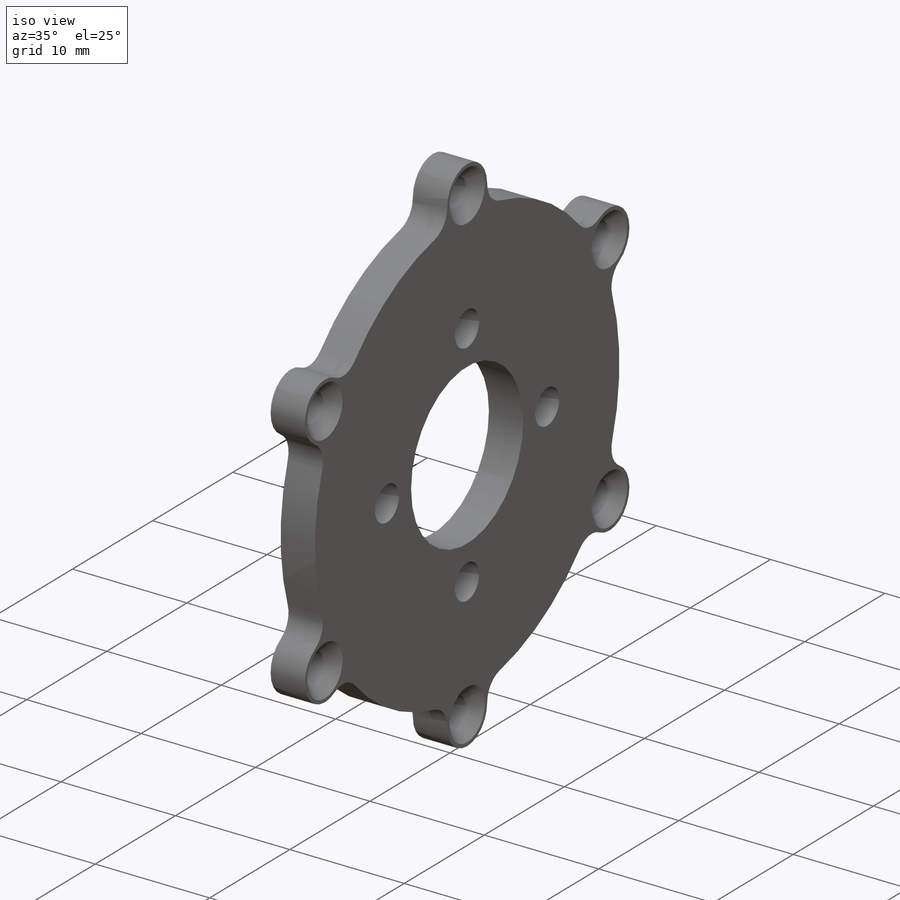
[diagram: iso view]
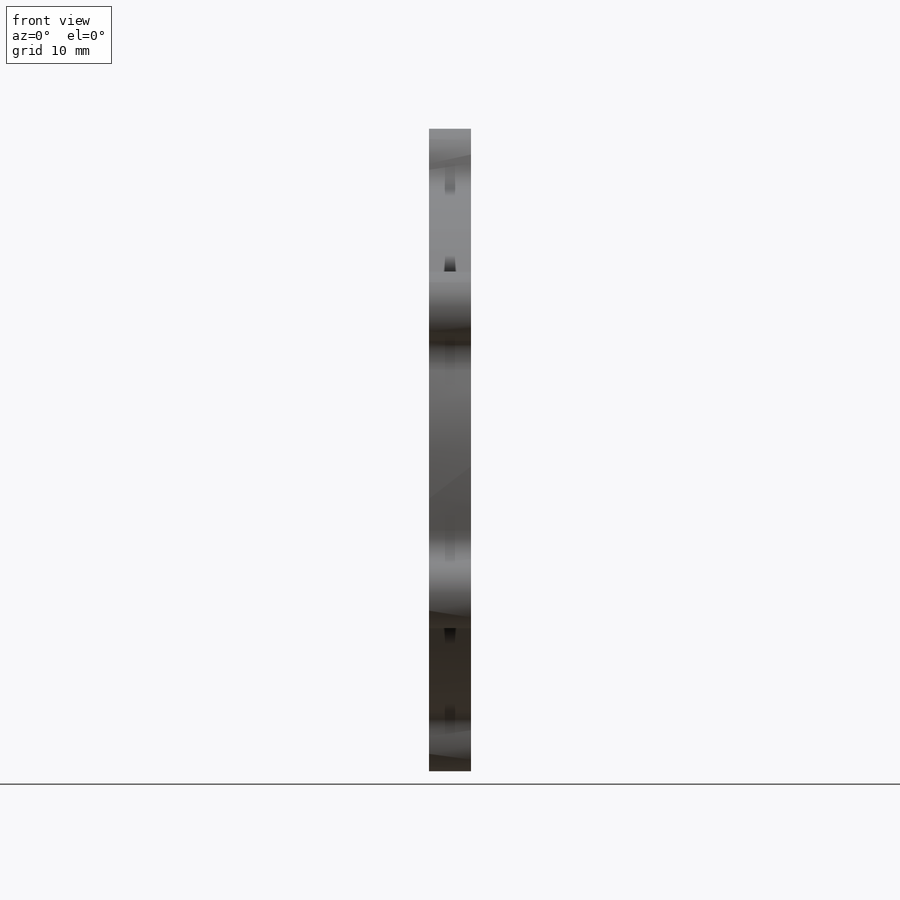
[diagram: front view]
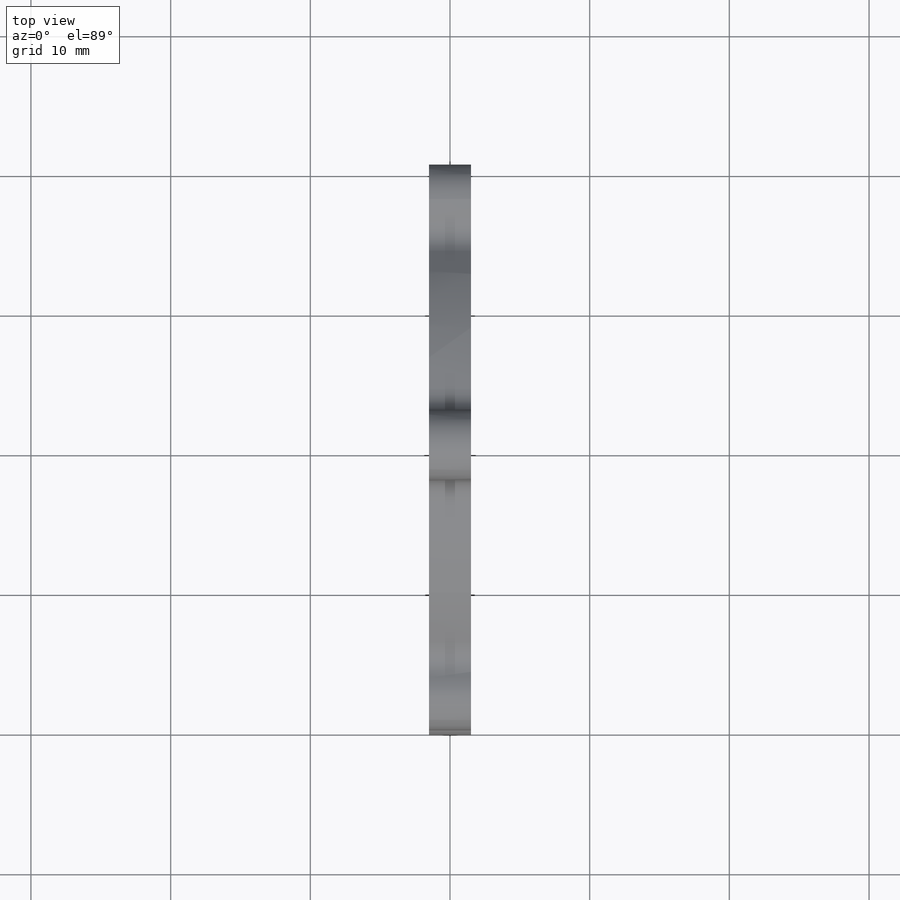
[diagram: top view]
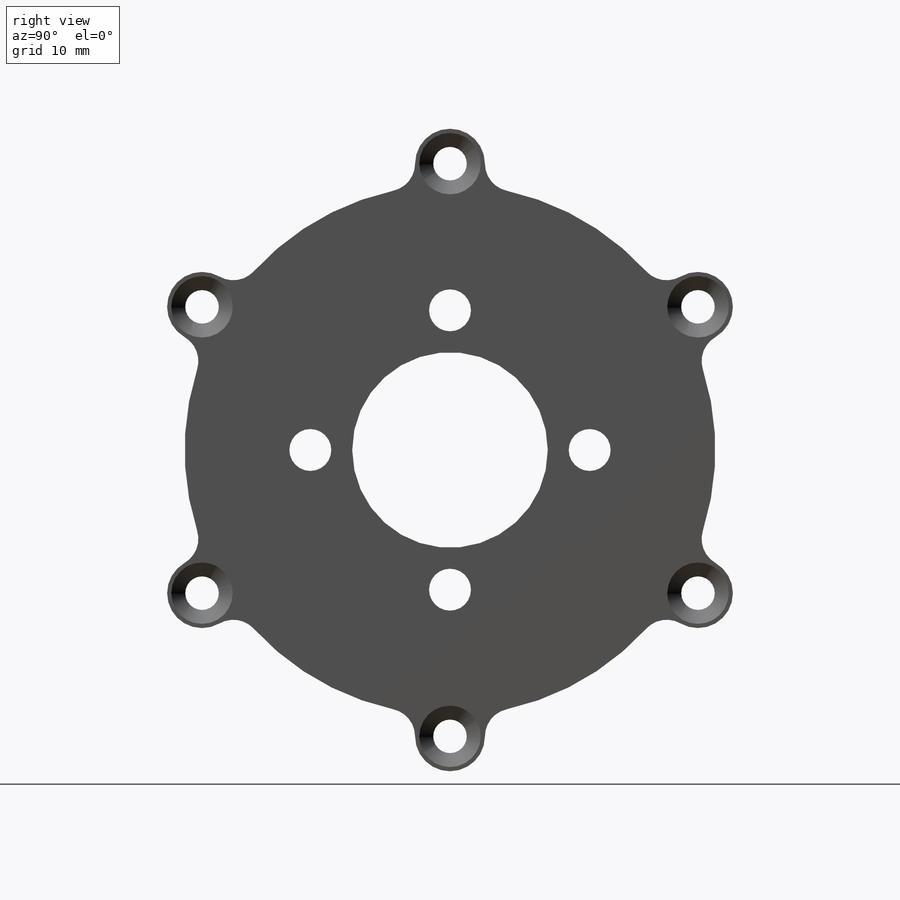
[diagram: right view]
SOLIDWORKS PART (.sldprt)
format: sldprt  version: not decoded by parser v0  size: 389,120 bytes
history: native  units: mm
features: sketch x8, hole x2, pattern_circular x2, extrude x2, fillet x2, material x1, revolve x1, cut_extrude x1 (+12 scaffold rows collapsed)
feature tree (31):
  scaffold x12  (default folders/planes/origin — collapsed)
  material  "A-Glass Fiber"
  sketch  "Sketch1"  dims[D1=3.0mm D2=14.0mm D3=38.0mm]
  revolve  "Revolve1"  Angle=360deg
  hole  "Ø3.0 (3) Diameter Hole2"  Diameter=3mm Depth=6mm
  sketch  "Sketch5"  dims[D1=20.0mm]
  sketch  "Sketch4"  dims[hole-wizard template sketch: 49 standard entries collapsed; hole parameters kept: c15.Drill Angle=118.0deg]
  pattern_circular  "CirPattern1"  Count=4 Angle=360deg
  sketch  "Sketch7"  dims[D1=5.0mm D2=41.0mm]
  extrude  "Boss-Extrude1"  [1 undecoded]
  sketch  "Sketch8"
  extrude  "Boss-Extrude2"  [1 undecoded]
  hole  "CSK for M2 Countersunk Flat Head Screw1"  Diameter=2.4mm Depth=3mm
  sketch  "Sketch10"
  sketch  "Sketch9"  dims[hole-wizard template sketch: 55 standard entries collapsed; hole parameters kept: c17.Thru Hole Depth=3.0mm c17.Near C'Sink Dia.=4.4mm c17.D4=~3.666174mm c17.Near C'Sink Angle=90.0deg]
  pattern_circular  "CirPattern2"  Count=6 Angle=360deg
  fillet  "Fillet1"  Radius=2mm
  sketch  "Sketch12"  dims[c1.D1=~28.56228mm c1.D2=25.0mm c2.D1=4.5mm]
  cut_extrude  "Cut-Extrude1"  Depth=1.5mm
  fillet  "Fillet2"  Radius=0.5mm
decode coverage: 14 of 18 modeling features carry decoded parameters
note: ~ marks probable driven/reference dimensions
note: 2 parameter values undecoded
note: suppression state not decoded; provenance and decode notes live in map.json
